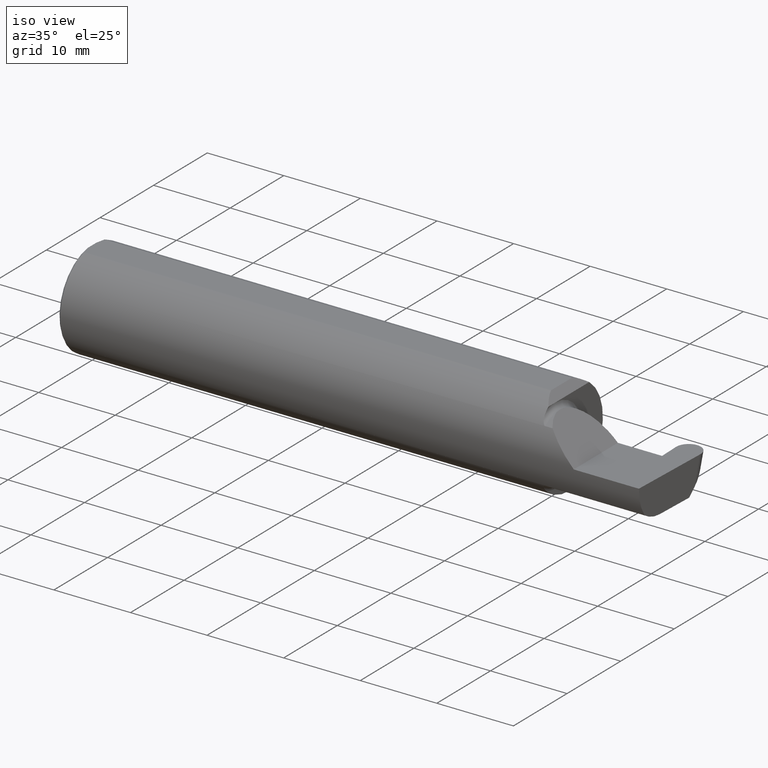
[diagram: clean part render]
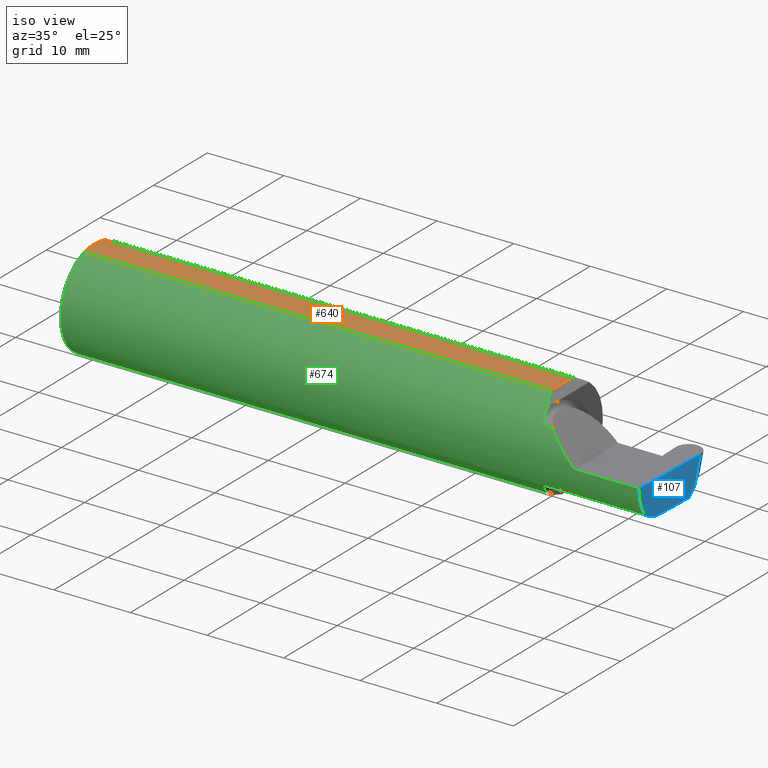
[diagram: same view with three faces highlighted in distinct colors, each labeled with its STEP entity id]
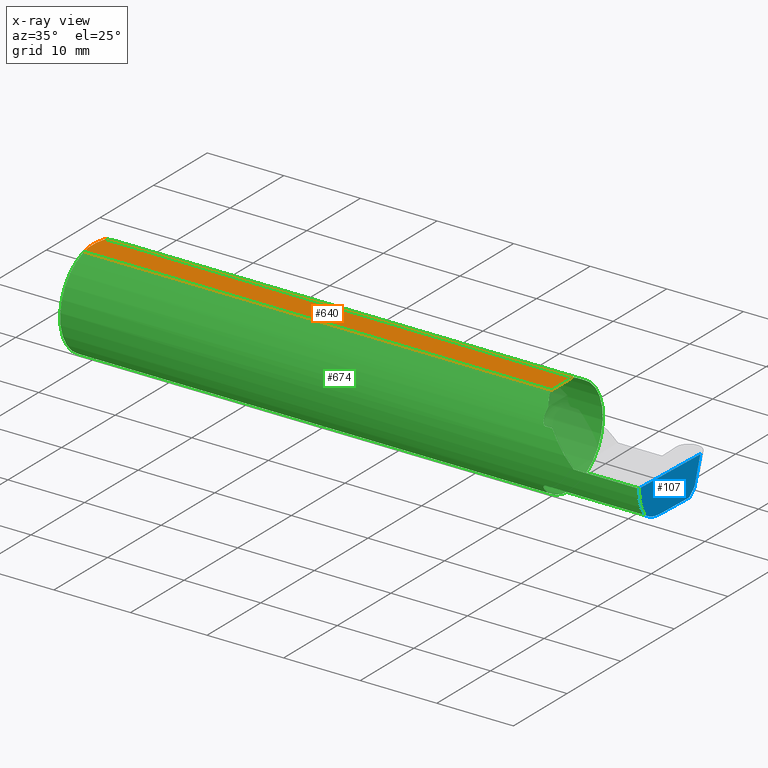
[diagram: x-ray of the same camera — body ghosted, the three highlighted faces saturated]
A machine part, iso view with three faces highlighted in distinct colors.
The next image is the same camera in x-ray (body ghosted, the three faces saturated) — at least one of them is partly hidden behind the body in this view.
Their STEP definitions:

[orange] entity #640 — the highlighted planar face has unit normal (0, 0, 1).
#13 = FACE_OUTER_BOUND ( 'NONE', #463, .T. ) ;
#16 = CARTESIAN_POINT ( 'NONE',  ( 0.000000000000000000, -0.07650098038587520299, 0.2378499999999998671 ) ) ;
#19 = EDGE_CURVE ( 'NONE', #163, #177, #428, .T. ) ;
#32 = VECTOR ( 'NONE', #435, 39.37007874015748143 ) ;
#36 = VERTEX_POINT ( 'NONE', #486 ) ;
#49 = VECTOR ( 'NONE', #578, 39.37007874015748143 ) ;
#95 = ORIENTED_EDGE ( 'NONE', *, *, #214, .F. ) ;
#101 = LINE ( 'NONE', #210, #49 ) ;
#118 = CARTESIAN_POINT ( 'NONE',  ( 2.412149999999998240, -0.2500000000000000555, 0.2378499999999998948 ) ) ;
#124 = ORIENTED_EDGE ( 'NONE', *, *, #19, .T. ) ;
#142 = ORIENTED_EDGE ( 'NONE', *, *, #270, .T. ) ;
#163 = VERTEX_POINT ( 'NONE', #637 ) ;
#177 = VERTEX_POINT ( 'NONE', #574 ) ;
#199 = ORIENTED_EDGE ( 'NONE', *, *, #529, .F. ) ;
#205 = PLANE ( 'NONE',  #273 ) ;
#210 = CARTESIAN_POINT ( 'NONE',  ( 0.000000000000000000, 0.07650098038587520299, 0.2378499999999998671 ) ) ;
#214 = EDGE_CURVE ( 'NONE', #349, #36, #272, .T. ) ;
#224 = VERTEX_POINT ( 'NONE', #753 ) ;
#257 = DIRECTION ( 'NONE',  ( 1.000000000000000000, 0.000000000000000000, 0.000000000000000000 ) ) ;
#263 = CARTESIAN_POINT ( 'NONE',  ( 0.009999999999999927350, 0.07650098038587520299, 0.2378499999999998671 ) ) ;
#264 = ORIENTED_EDGE ( 'NONE', *, *, #275, .F. ) ;
#270 = EDGE_CURVE ( 'NONE', #224, #163, #559, .T. ) ;
#272 = B_SPLINE_CURVE_WITH_KNOTS ( 'NONE', 3,
 ( #439, #755, #686, #263 ),
 .UNSPECIFIED., .F., .F.,
 ( 4, 4 ),
 ( 0.01593449416844765903, 0.01712021724825598876 ),
 .UNSPECIFIED. ) ;
#273 = AXIS2_PLACEMENT_3D ( 'NONE', #388, #555, #632 ) ;
#275 = EDGE_CURVE ( 'NONE', #224, #638, #712, .T. ) ;
#317 = CARTESIAN_POINT ( 'NONE',  ( 0.001983148254845710189, -0.04629825796642594860, 0.2378499999999998671 ) ) ;
#349 = VERTEX_POINT ( 'NONE', #579 ) ;
#360 = VECTOR ( 'NONE', #257, 39.37007874015748143 ) ;
#361 = CARTESIAN_POINT ( 'NONE',  ( 0.000000000000000000, 0.2498499999999998500, 0.2378499999999998671 ) ) ;
#388 = CARTESIAN_POINT ( 'NONE',  ( 3.501298404146671484, 0.2498499999999998500, 0.2378499999999998671 ) ) ;
#428 = LINE ( 'NONE', #118, #32 ) ;
#435 = DIRECTION ( 'NONE',  ( 0.000000000000000000, 1.000000000000000000, 0.000000000000000000 ) ) ;
#439 = CARTESIAN_POINT ( 'NONE',  ( 0.000000000000000000, 0.03090954545120574992, 0.2378499999999998671 ) ) ;
#442 = CARTESIAN_POINT ( 'NONE',  ( 0.000000000000000000, -0.03090954545120560767, 0.2378499999999998671 ) ) ;
#463 = EDGE_LOOP ( 'NONE', ( #142, #124, #582, #95, #199, #264 ) ) ;
#486 = CARTESIAN_POINT ( 'NONE',  ( 0.009999999999999927350, 0.07650098038587520299, 0.2378499999999998671 ) ) ;
#504 = CARTESIAN_POINT ( 'NONE',  ( 0.000000000000000000, -0.03090954545120560767, 0.2378499999999998671 ) ) ;
#529 = EDGE_CURVE ( 'NONE', #638, #349, #666, .T. ) ;
#555 = DIRECTION ( 'NONE',  ( 0.000000000000000000, 0.000000000000000000, 1.000000000000000000 ) ) ;
#559 = LINE ( 'NONE', #16, #360 ) ;
#574 = CARTESIAN_POINT ( 'NONE',  ( 2.412149999999998240, 0.07650098038587530014, 0.2378499999999998948 ) ) ;
#578 = DIRECTION ( 'NONE',  ( -1.000000000000000000, -0.000000000000000000, -0.000000000000000000 ) ) ;
#579 = CARTESIAN_POINT ( 'NONE',  ( 0.000000000000000000, 0.03090954545120574992, 0.2378499999999998671 ) ) ;
#582 = ORIENTED_EDGE ( 'NONE', *, *, #687, .T. ) ;
#605 = DIRECTION ( 'NONE',  ( -0.000000000000000000, 1.000000000000000000, -0.000000000000000000 ) ) ;
#632 = DIRECTION ( 'NONE',  ( 1.000000000000000000, 0.000000000000000000, -0.000000000000000000 ) ) ;
#637 = CARTESIAN_POINT ( 'NONE',  ( 2.412149999999998240, -0.07650098038587530014, 0.2378499999999998948 ) ) ;
#638 = VERTEX_POINT ( 'NONE', #504 ) ;
#640 = ADVANCED_FACE ( 'NONE', ( #13 ), #205, .T. ) ;
#666 = LINE ( 'NONE', #361, #760 ) ;
#686 = CARTESIAN_POINT ( 'NONE',  ( 0.005466242398876407227, 0.06169385855649833772, 0.2378499999999998671 ) ) ;
#687 = EDGE_CURVE ( 'NONE', #177, #36, #101, .T. ) ;
#688 = CARTESIAN_POINT ( 'NONE',  ( 0.009999999999999927350, -0.07650098038587520299, 0.2378499999999998671 ) ) ;
#712 = B_SPLINE_CURVE_WITH_KNOTS ( 'NONE', 3,
 ( #688, #749, #317, #442 ),
 .UNSPECIFIED., .F., .F.,
 ( 4, 4 ),
 ( 0.01317593029100226111, 0.01435802289191457325 ),
 .UNSPECIFIED. ) ;
#749 = CARTESIAN_POINT ( 'NONE',  ( 0.005459900170181729989, -0.06167314502012864741, 0.2378499999999998671 ) ) ;
#753 = CARTESIAN_POINT ( 'NONE',  ( 0.009999999999999927350, -0.07650098038587520299, 0.2378499999999998671 ) ) ;
#755 = CARTESIAN_POINT ( 'NONE',  ( 0.002005502345409073024, 0.04647171987093980799, 0.2378499999999998671 ) ) ;
#760 = VECTOR ( 'NONE', #605, 39.37007874015748143 ) ;

[blue] entity #107 — the highlighted planar face has unit normal (-0.9992, 0.0349, 0.0175).
#11 = FACE_OUTER_BOUND ( 'NONE', #348, .T. ) ;
#20 = CARTESIAN_POINT ( 'NONE',  ( 2.984591634083985756, -0.1771157075472505615, -0.1623092683844333806 ) ) ;
#39 = LINE ( 'NONE', #54, #592 ) ;
#44 =( BOUNDED_CURVE ( )  B_SPLINE_CURVE ( 3, ( #663, #485, #117, #61 ),
 .UNSPECIFIED., .F., .F. ) 
 B_SPLINE_CURVE_WITH_KNOTS ( ( 4, 4 ),
 ( 6.160376845738953833, 6.746954780470613144 ),
 .UNSPECIFIED. ) 
 CURVE ( )  GEOMETRIC_REPRESENTATION_ITEM ( )  RATIONAL_B_SPLINE_CURVE ( ( 1.000000000000000000, 0.9715321379117536349, 0.9715321379117536349, 1.000000000000000000 ) ) 
 REPRESENTATION_ITEM ( '' )  );
#46 = DIRECTION ( 'NONE',  ( 0.02590004391968258463, 0.2587322210431824421, 0.9656017944882975268 ) ) ;
#53 = LINE ( 'NONE', #709, #320 ) ;
#54 = CARTESIAN_POINT ( 'NONE',  ( 2.996896011933845472, 0.1563248983306043671, -0.1244994388175648253 ) ) ;
#61 = CARTESIAN_POINT ( 'NONE',  ( 2.984886542352623628, -0.2498499999999999888, 0.000000000000000000 ) ) ;
#79 = EDGE_CURVE ( 'NONE', #469, #535, #793, .T. ) ;
#83 = ORIENTED_EDGE ( 'NONE', *, *, #635, .T. ) ;
#107 = ADVANCED_FACE ( 'NONE', ( #11 ), #303, .F. ) ;
#117 = CARTESIAN_POINT ( 'NONE',  ( 2.984020840019027343, -0.2498500000000000443, -0.04956584089959705647 ) ) ;
#150 = VERTEX_POINT ( 'NONE', #668 ) ;
#164 = ORIENTED_EDGE ( 'NONE', *, *, #498, .F. ) ;
#188 = DIRECTION ( 'NONE',  ( -0.03489949670249505725, -0.9993908270190959842, 0.000000000000000000 ) ) ;
#196 = VERTEX_POINT ( 'NONE', #513 ) ;
#197 = EDGE_CURVE ( 'NONE', #515, #150, #445, .T. ) ;
#202 = ORIENTED_EDGE ( 'NONE', *, *, #197, .T. ) ;
#238 = DIRECTION ( 'NONE',  ( -0.9992386149554828290, 0.03489418134010775774, 0.01745240643728358798 ) ) ;
#258 = VECTOR ( 'NONE', #550, 39.37007874015748854 ) ;
#286 = ORIENTED_EDGE ( 'NONE', *, *, #751, .T. ) ;
#303 = PLANE ( 'NONE',  #436 ) ;
#307 = CARTESIAN_POINT ( 'NONE',  ( 2.987538890366190802, -0.08637003105099090583, -0.1750000000000000722 ) ) ;
#318 = VECTOR ( 'NONE', #691, 39.37007874015748143 ) ;
#320 = VECTOR ( 'NONE', #46, 39.37007874015748854 ) ;
#337 = ORIENTED_EDGE ( 'NONE', *, *, #391, .F. ) ;
#346 = ORIENTED_EDGE ( 'NONE', *, *, #79, .F. ) ;
#348 = EDGE_LOOP ( 'NONE', ( #337, #286, #202, #164, #83, #346 ) ) ;
#369 = CARTESIAN_POINT ( 'NONE',  ( 2.987033238708274752, -0.1008499999999993291, -0.1750000000000000722 ) ) ;
#391 = EDGE_CURVE ( 'NONE', #196, #469, #39, .T. ) ;
#414 = DIRECTION ( 'NONE',  ( -0.03701744261649875939, -0.7066221440565400025, -0.7066221440565478851 ) ) ;
#430 = CARTESIAN_POINT ( 'NONE',  ( 2.994250465595685196, 0.1058243371481696615, -0.1750000000000001277 ) ) ;
#436 = AXIS2_PLACEMENT_3D ( 'NONE', #743, #238, #188 ) ;
#445 = LINE ( 'NONE', #564, #318 ) ;
#457 = CARTESIAN_POINT ( 'NONE',  ( 2.983929579294953616, -0.2080850024789288599, -0.1382955322609669135 ) ) ;
#469 = VERTEX_POINT ( 'NONE', #430 ) ;
#485 = CARTESIAN_POINT ( 'NONE',  ( 2.983692505346974944, -0.2355204011147991883, -0.09701513151466779894 ) ) ;
#498 = EDGE_CURVE ( 'NONE', #771, #150, #44, .T. ) ;
#507 =( BOUNDED_CURVE ( )  B_SPLINE_CURVE ( 3, ( #562, #20, #748, #626 ),
 .UNSPECIFIED., .F., .F. ) 
 B_SPLINE_CURVE_WITH_KNOTS ( ( 4, 4 ),
 ( 0.4474640105399692036, 1.107026853503877195 ),
 .UNSPECIFIED. ) 
 CURVE ( )  GEOMETRIC_REPRESENTATION_ITEM ( )  RATIONAL_B_SPLINE_CURVE ( ( 1.000000000000000000, 0.9640754331822828371, 0.9640754331822828371, 1.000000000000000000 ) ) 
 REPRESENTATION_ITEM ( '' )  );
#513 = CARTESIAN_POINT ( 'NONE',  ( 2.996204691241262985, 0.1431283489340402226, -0.1376959882141291225 ) ) ;
#515 = VERTEX_POINT ( 'NONE', #600 ) ;
#535 = VERTEX_POINT ( 'NONE', #369 ) ;
#550 = DIRECTION ( 'NONE',  ( -0.03489949670249505725, -0.9993908270190959842, 1.222058880457094148E-16 ) ) ;
#562 = CARTESIAN_POINT ( 'NONE',  ( 2.983929579294953616, -0.2080850024789288599, -0.1382955322609669135 ) ) ;
#564 = CARTESIAN_POINT ( 'NONE',  ( 2.999961557721757099, 0.1818419583544338969, 0.000000000000000000 ) ) ;
#592 = VECTOR ( 'NONE', #414, 39.37007874015748143 ) ;
#600 = CARTESIAN_POINT ( 'NONE',  ( 2.999898068948996244, 0.1800238777770215015, 0.000000000000000000 ) ) ;
#626 = CARTESIAN_POINT ( 'NONE',  ( 2.987033238708274752, -0.1008499999999993291, -0.1750000000000000722 ) ) ;
#635 = EDGE_CURVE ( 'NONE', #771, #535, #507, .T. ) ;
#663 = CARTESIAN_POINT ( 'NONE',  ( 2.983929579294953616, -0.2080850024789288599, -0.1382955322609669135 ) ) ;
#668 = CARTESIAN_POINT ( 'NONE',  ( 2.984886542352623628, -0.2498499999999999888, 0.000000000000000000 ) ) ;
#691 = DIRECTION ( 'NONE',  ( -0.03489949670249506419, -0.9993908270190959842, 0.000000000000000000 ) ) ;
#709 = CARTESIAN_POINT ( 'NONE',  ( 2.999910294815772982, 0.1801460098349874639, 0.0004558030455618174615 ) ) ;
#743 = CARTESIAN_POINT ( 'NONE',  ( 2.999961557721757099, 0.1818419583544338969, 0.000000000000000000 ) ) ;
#748 = CARTESIAN_POINT ( 'NONE',  ( 2.985664738015655129, -0.1400387324517225474, -0.1750000000000002109 ) ) ;
#751 = EDGE_CURVE ( 'NONE', #196, #515, #53, .T. ) ;
#771 = VERTEX_POINT ( 'NONE', #457 ) ;
#793 = LINE ( 'NONE', #307, #258 ) ;

[green] entity #674 — the highlighted cylindrical surface (partial cylindrical patch) has radius 6.3462 mm, axis along (-1, -0, -0).
#3 = DIRECTION ( 'NONE',  ( -1.000000000000000000, -0.000000000000000000, -0.000000000000000000 ) ) ;
#4 = CARTESIAN_POINT ( 'NONE',  ( 2.450000000000000178, -0.1616050818046600723, 0.1905487340154983222 ) ) ;
#6 = CIRCLE ( 'NONE', #734, 0.2498499999999999888 ) ;
#8 = B_SPLINE_CURVE_WITH_KNOTS ( 'NONE', 3,
 ( #4, #796, #311, #618, #494, #77, #71, #63, #298, #481, #314, #490, #673, #362 ),
 .UNSPECIFIED., .F., .F.,
 ( 4, 2, 2, 2, 2, 2, 4 ),
 ( 0.0003834465838148106917, 0.0008781406165086602222, 0.001372834649202509753, 0.001867528681896359283, 0.002114875698243287843, 0.002238549206416752015, 0.002362222714590216620 ),
 .UNSPECIFIED. ) ;
#15 = CARTESIAN_POINT ( 'NONE',  ( 2.674394314999999800, -0.2080850024789289432, 0.1382955322609669135 ) ) ;
#16 = CARTESIAN_POINT ( 'NONE',  ( 0.000000000000000000, -0.07650098038587520299, 0.2378499999999998671 ) ) ;
#22 = CARTESIAN_POINT ( 'NONE',  ( 2.511704467739031887, -0.2080850024789288322, 0.1382955322609670523 ) ) ;
#24 = CARTESIAN_POINT ( 'NONE',  ( 2.473318040126430084, -0.2080850024789288322, -0.1382955322609669968 ) ) ;
#27 = CARTESIAN_POINT ( 'NONE',  ( 2.462579853086619419, -0.2024300470081732695, -0.1464774911482688291 ) ) ;
#36 = VERTEX_POINT ( 'NONE', #486 ) ;
#38 = CARTESIAN_POINT ( 'NONE',  ( 2.475000000000000089, -0.2080850024789288044, 0.1382955322609670523 ) ) ;
#41 = VERTEX_POINT ( 'NONE', #729 ) ;
#44 =( BOUNDED_CURVE ( )  B_SPLINE_CURVE ( 3, ( #663, #485, #117, #61 ),
 .UNSPECIFIED., .F., .F. ) 
 B_SPLINE_CURVE_WITH_KNOTS ( ( 4, 4 ),
 ( 6.160376845738953833, 6.746954780470613144 ),
 .UNSPECIFIED. ) 
 CURVE ( )  GEOMETRIC_REPRESENTATION_ITEM ( )  RATIONAL_B_SPLINE_CURVE ( ( 1.000000000000000000, 0.9715321379117536349, 0.9715321379117536349, 1.000000000000000000 ) ) 
 REPRESENTATION_ITEM ( '' )  );
#49 = VECTOR ( 'NONE', #578, 39.37007874015748143 ) ;
#58 = EDGE_CURVE ( 'NONE', #41, #689, #561, .T. ) ;
#61 = CARTESIAN_POINT ( 'NONE',  ( 2.984886542352623628, -0.2498499999999999888, 0.000000000000000000 ) ) ;
#63 = CARTESIAN_POINT ( 'NONE',  ( 2.462616400345754908, -0.2024684335577099925, 0.1464246884265640869 ) ) ;
#67 = DIRECTION ( 'NONE',  ( 0.000000000000000000, 1.000000000000000000, 0.000000000000000000 ) ) ;
#68 = EDGE_CURVE ( 'NONE', #730, #703, #8, .T. ) ;
#71 = CARTESIAN_POINT ( 'NONE',  ( 2.458182335268384477, -0.1972192205116128361, 0.1535061413537212593 ) ) ;
#75 = CIRCLE ( 'NONE', #514, 0.2498499999999999888 ) ;
#77 = CARTESIAN_POINT ( 'NONE',  ( 2.456159563508733878, -0.1933019864360846773, 0.1584298865564834069 ) ) ;
#78 = EDGE_CURVE ( 'NONE', #771, #591, #123, .T. ) ;
#81 = CARTESIAN_POINT ( 'NONE',  ( 0.000000000000000000, 0.000000000000000000, 0.000000000000000000 ) ) ;
#85 = CARTESIAN_POINT ( 'NONE',  ( 2.475000000000000089, -0.2080850024789288322, -0.1382955322609670523 ) ) ;
#89 = FACE_OUTER_BOUND ( 'NONE', #462, .T. ) ;
#92 = CARTESIAN_POINT ( 'NONE',  ( 2.450000000000000178, 0.1497498664440163330, 0.1999999999999982903 ) ) ;
#99 = ORIENTED_EDGE ( 'NONE', *, *, #357, .T. ) ;
#101 = LINE ( 'NONE', #210, #49 ) ;
#104 = CARTESIAN_POINT ( 'NONE',  ( 2.433375685911487007, 0.1275470899297183047, 0.2166243140885106555 ) ) ;
#108 = VERTEX_POINT ( 'NONE', #130 ) ;
#117 = CARTESIAN_POINT ( 'NONE',  ( 2.984020840019027343, -0.2498500000000000443, -0.04956584089959705647 ) ) ;
#123 = LINE ( 'NONE', #128, #295 ) ;
#128 = CARTESIAN_POINT ( 'NONE',  ( 2.674394314999999800, -0.2080850024789289432, -0.1382955322609669135 ) ) ;
#130 = CARTESIAN_POINT ( 'NONE',  ( 0.009999999999999927350, 0.000000000000000000, -0.2498499999999999888 ) ) ;
#135 = DIRECTION ( 'NONE',  ( 0.000000000000000000, 0.000000000000000000, 1.000000000000000000 ) ) ;
#145 = VERTEX_POINT ( 'NONE', #557 ) ;
#150 = VERTEX_POINT ( 'NONE', #668 ) ;
#163 = VERTEX_POINT ( 'NONE', #637 ) ;
#168 = VECTOR ( 'NONE', #437, 39.37007874015748143 ) ;
#177 = VERTEX_POINT ( 'NONE', #574 ) ;
#186 = ORIENTED_EDGE ( 'NONE', *, *, #78, .F. ) ;
#191 = CARTESIAN_POINT ( 'NONE',  ( 2.600434159100402987, -0.2498499999999999610, 0.04956584089959713973 ) ) ;
#207 = CARTESIAN_POINT ( 'NONE',  ( 2.552984868485331571, -0.2355204011147991605, 0.09701513151466779894 ) ) ;
#210 = CARTESIAN_POINT ( 'NONE',  ( 0.000000000000000000, 0.07650098038587520299, 0.2378499999999998671 ) ) ;
#213 = EDGE_CURVE ( 'NONE', #390, #145, #420, .T. ) ;
#215 = CARTESIAN_POINT ( 'NONE',  ( 2.450000000000000178, -0.1497498664440164995, 0.1999999999999982070 ) ) ;
#219 = CIRCLE ( 'NONE', #246, 0.2498499999999999888 ) ;
#220 = CARTESIAN_POINT ( 'NONE',  ( 2.456147634408387681, -0.1932733126899457698, -0.1584637047788200748 ) ) ;
#224 = VERTEX_POINT ( 'NONE', #753 ) ;
#246 = AXIS2_PLACEMENT_3D ( 'NONE', #347, #400, #458 ) ;
#254 =( BOUNDED_CURVE ( )  B_SPLINE_CURVE ( 3, ( #528, #780, #104, #399 ),
 .UNSPECIFIED., .F., .F. ) 
 B_SPLINE_CURVE_WITH_KNOTS ( ( 4, 4 ),
 ( 0.3111857320071445554, 0.6427002007837625541 ),
 .UNSPECIFIED. ) 
 CURVE ( )  GEOMETRIC_REPRESENTATION_ITEM ( )  RATIONAL_B_SPLINE_CURVE ( ( 1.000000000000000000, 0.9908624633578575480, 0.9908624633578575480, 1.000000000000000000 ) ) 
 REPRESENTATION_ITEM ( '' )  );
#257 = DIRECTION ( 'NONE',  ( 1.000000000000000000, 0.000000000000000000, 0.000000000000000000 ) ) ;
#260 = ORIENTED_EDGE ( 'NONE', *, *, #270, .F. ) ;
#270 = EDGE_CURVE ( 'NONE', #224, #163, #559, .T. ) ;
#280 = ORIENTED_EDGE ( 'NONE', *, *, #68, .F. ) ;
#282 = CARTESIAN_POINT ( 'NONE',  ( 2.433375685911487452, -0.1275470899297185268, 0.2166243140885105445 ) ) ;
#284 = ORIENTED_EDGE ( 'NONE', *, *, #213, .T. ) ;
#295 = VECTOR ( 'NONE', #373, 39.37007874015748143 ) ;
#298 = CARTESIAN_POINT ( 'NONE',  ( 2.464343523383979218, -0.2041337200786081107, 0.1440846171672515441 ) ) ;
#306 = LINE ( 'NONE', #549, #488 ) ;
#309 = CARTESIAN_POINT ( 'NONE',  ( 2.450000000000000178, -0.1497498664440164995, 0.1999999999999982070 ) ) ;
#311 = CARTESIAN_POINT ( 'NONE',  ( 2.450367168219774072, -0.1713400252854599681, 0.1819601557798508629 ) ) ;
#313 = DIRECTION ( 'NONE',  ( -1.000000000000000000, -0.000000000000000000, -0.000000000000000000 ) ) ;
#314 = CARTESIAN_POINT ( 'NONE',  ( 2.468876997637615922, -0.2068363917296598964, 0.1401586554522233075 ) ) ;
#316 = ORIENTED_EDGE ( 'NONE', *, *, #498, .T. ) ;
#321 = LINE ( 'NONE', #15, #168 ) ;
#324 = CARTESIAN_POINT ( 'NONE',  ( 2.467611663768900510, -0.2061921161193829011, -0.1411075319999379740 ) ) ;
#329 =( BOUNDED_CURVE ( )  B_SPLINE_CURVE ( 3, ( #215, #282, #769, #589 ),
 .UNSPECIFIED., .F., .F. ) 
 B_SPLINE_CURVE_WITH_KNOTS ( ( 4, 4 ),
 ( 5.640485106395822790, 5.971999575172441510 ),
 .UNSPECIFIED. ) 
 CURVE ( )  GEOMETRIC_REPRESENTATION_ITEM ( )  RATIONAL_B_SPLINE_CURVE ( ( 1.000000000000000000, 0.9908624633578575480, 0.9908624633578575480, 1.000000000000000000 ) ) 
 REPRESENTATION_ITEM ( '' )  );
#336 = EDGE_CURVE ( 'NONE', #108, #36, #6, .T. ) ;
#340 = CARTESIAN_POINT ( 'NONE',  ( 2.451385488563269988, -0.1808287530430323642, -0.1728790649396288737 ) ) ;
#341 = CARTESIAN_POINT ( 'NONE',  ( 0.009999999999999927350, 0.000000000000000000, 0.000000000000000000 ) ) ;
#345 = CARTESIAN_POINT ( 'NONE',  ( 2.650000000000000355, -0.2498499999999999610, 4.286263797015729199E-17 ) ) ;
#347 = CARTESIAN_POINT ( 'NONE',  ( 0.009999999999999927350, 0.000000000000000000, 0.000000000000000000 ) ) ;
#357 = EDGE_CURVE ( 'NONE', #224, #108, #219, .T. ) ;
#358 = DIRECTION ( 'NONE',  ( 1.000000000000000000, 2.820234929918045414E-16, 0.000000000000000000 ) ) ;
#360 = VECTOR ( 'NONE', #257, 39.37007874015748143 ) ;
#362 = CARTESIAN_POINT ( 'NONE',  ( 2.475000000000000089, -0.2080850024789288044, 0.1382955322609670523 ) ) ;
#373 = DIRECTION ( 'NONE',  ( -1.000000000000000000, -2.820234929918045414E-16, -0.000000000000000000 ) ) ;
#375 = CARTESIAN_POINT ( 'NONE',  ( 2.458176740666625282, -0.1972027065478069718, -0.1535263573771916967 ) ) ;
#390 = VERTEX_POINT ( 'NONE', #345 ) ;
#399 = CARTESIAN_POINT ( 'NONE',  ( 2.450000000000000178, 0.1497498664440163330, 0.1999999999999982903 ) ) ;
#400 = DIRECTION ( 'NONE',  ( 1.000000000000000000, 0.000000000000000000, 0.000000000000000000 ) ) ;
#412 = CARTESIAN_POINT ( 'NONE',  ( 2.450000000000000622, -0.1716188362992550620, -0.1820560320165483525 ) ) ;
#420 =( BOUNDED_CURVE ( )  B_SPLINE_CURVE ( 3, ( #623, #191, #207, #22 ),
 .UNSPECIFIED., .F., .F. ) 
 B_SPLINE_CURVE_WITH_KNOTS ( ( 4, 4 ),
 ( 4.712388980384689674, 5.298966915116348986 ),
 .UNSPECIFIED. ) 
 CURVE ( )  GEOMETRIC_REPRESENTATION_ITEM ( )  RATIONAL_B_SPLINE_CURVE ( ( 1.000000000000000000, 0.9715321379117536349, 0.9715321379117536349, 1.000000000000000000 ) ) 
 REPRESENTATION_ITEM ( '' )  );
#429 = ORIENTED_EDGE ( 'NONE', *, *, #756, .T. ) ;
#437 = DIRECTION ( 'NONE',  ( 1.000000000000000000, 2.820234929918045414E-16, 0.000000000000000000 ) ) ;
#441 = DIRECTION ( 'NONE',  ( 1.000000000000000000, 2.820234929918045414E-16, 0.000000000000000000 ) ) ;
#444 = CARTESIAN_POINT ( 'NONE',  ( 2.471700027347578654, -0.2077785947292765945, -0.1387580622202828906 ) ) ;
#452 = CYLINDRICAL_SURFACE ( 'NONE', #761, 0.2498499999999999888 ) ;
#457 = CARTESIAN_POINT ( 'NONE',  ( 2.983929579294953616, -0.2080850024789288599, -0.1382955322609669135 ) ) ;
#458 = DIRECTION ( 'NONE',  ( 0.000000000000000000, 0.000000000000000000, -1.000000000000000000 ) ) ;
#461 = DIRECTION ( 'NONE',  ( 0.000000000000000000, 0.000000000000000000, -1.000000000000000000 ) ) ;
#462 = EDGE_LOOP ( 'NONE', ( #186, #316, #787, #284, #758, #280, #754, #429, #260, #99, #750, #572, #696, #531, #634 ) ) ;
#464 = CARTESIAN_POINT ( 'NONE',  ( 2.450000000000000178, -0.1616050818046600723, 0.1905487340154983222 ) ) ;
#481 = CARTESIAN_POINT ( 'NONE',  ( 2.467647060162627692, -0.2062109266231179627, 0.1410799729252294465 ) ) ;
#485 = CARTESIAN_POINT ( 'NONE',  ( 2.983692505346974944, -0.2355204011147991883, -0.09701513151466779894 ) ) ;
#486 = CARTESIAN_POINT ( 'NONE',  ( 0.009999999999999927350, 0.07650098038587520299, 0.2378499999999998671 ) ) ;
#488 = VECTOR ( 'NONE', #3, 39.37007874015748143 ) ;
#490 = CARTESIAN_POINT ( 'NONE',  ( 2.471718393013770054, -0.2077830475237239516, 0.1387513848711940667 ) ) ;
#494 = CARTESIAN_POINT ( 'NONE',  ( 2.452968662030529323, -0.1849684355203375652, 0.1680843977756270591 ) ) ;
#497 = CARTESIAN_POINT ( 'NONE',  ( 2.450000000000000178, 0.000000000000000000, 0.000000000000000000 ) ) ;
#498 = EDGE_CURVE ( 'NONE', #771, #150, #44, .T. ) ;
#500 = DIRECTION ( 'NONE',  ( 0.000000000000000000, 1.000000000000000000, 0.000000000000000000 ) ) ;
#514 = AXIS2_PLACEMENT_3D ( 'NONE', #622, #441, #500 ) ;
#528 = CARTESIAN_POINT ( 'NONE',  ( 2.412149999999998240, 0.07650098038587530014, 0.2378499999999998948 ) ) ;
#531 = ORIENTED_EDGE ( 'NONE', *, *, #58, .F. ) ;
#536 = AXIS2_PLACEMENT_3D ( 'NONE', #497, #358, #67 ) ;
#549 = CARTESIAN_POINT ( 'NONE',  ( 4.499279347985562423E-32, -0.2498499999999999610, 3.673940397442054938E-16 ) ) ;
#557 = CARTESIAN_POINT ( 'NONE',  ( 2.511704467739031887, -0.2080850024789288322, 0.1382955322609670523 ) ) ;
#559 = LINE ( 'NONE', #16, #360 ) ;
#560 = VERTEX_POINT ( 'NONE', #309 ) ;
#561 = CIRCLE ( 'NONE', #536, 0.2498499999999999888 ) ;
#566 = EDGE_CURVE ( 'NONE', #150, #390, #306, .T. ) ;
#570 = CARTESIAN_POINT ( 'NONE',  ( 2.464302603425052141, -0.2041009206016211608, -0.1441313430770042037 ) ) ;
#572 = ORIENTED_EDGE ( 'NONE', *, *, #687, .F. ) ;
#574 = CARTESIAN_POINT ( 'NONE',  ( 2.412149999999998240, 0.07650098038587530014, 0.2378499999999998948 ) ) ;
#578 = DIRECTION ( 'NONE',  ( -1.000000000000000000, -0.000000000000000000, -0.000000000000000000 ) ) ;
#583 = CARTESIAN_POINT ( 'NONE',  ( 2.450000000000000178, -0.1616050818046600723, -0.1905487340154983222 ) ) ;
#584 = DIRECTION ( 'NONE',  ( 1.000000000000000000, 0.000000000000000000, 0.000000000000000000 ) ) ;
#585 = B_SPLINE_CURVE_WITH_KNOTS ( 'NONE', 3,
 ( #752, #24, #444, #690, #324, #570, #27, #375, #220, #340, #412, #583 ),
 .UNSPECIFIED., .F., .F.,
 ( 4, 2, 2, 2, 2, 4 ),
 ( 1.964491429111597470E-07, 0.0001260981470478304801, 0.0002519998449527497872, 0.0005038032407626170245, 0.001007410032382351391, 0.002014623615621820556 ),
 .UNSPECIFIED. ) ;
#589 = CARTESIAN_POINT ( 'NONE',  ( 2.412149999999998240, -0.07650098038587530014, 0.2378499999999998948 ) ) ;
#591 = VERTEX_POINT ( 'NONE', #85 ) ;
#615 = EDGE_CURVE ( 'NONE', #560, #730, #75, .T. ) ;
#618 = CARTESIAN_POINT ( 'NONE',  ( 2.451849548162864156, -0.1805300287242670720, 0.1728462070311783116 ) ) ;
#622 = CARTESIAN_POINT ( 'NONE',  ( 2.450000000000000178, 0.000000000000000000, 0.000000000000000000 ) ) ;
#623 = CARTESIAN_POINT ( 'NONE',  ( 2.650000000000000355, -0.2498499999999999610, 4.286263797015729199E-17 ) ) ;
#624 = EDGE_CURVE ( 'NONE', #703, #145, #321, .T. ) ;
#634 = ORIENTED_EDGE ( 'NONE', *, *, #677, .F. ) ;
#637 = CARTESIAN_POINT ( 'NONE',  ( 2.412149999999998240, -0.07650098038587530014, 0.2378499999999998948 ) ) ;
#663 = CARTESIAN_POINT ( 'NONE',  ( 2.983929579294953616, -0.2080850024789288599, -0.1382955322609669135 ) ) ;
#668 = CARTESIAN_POINT ( 'NONE',  ( 2.984886542352623628, -0.2498499999999999888, 0.000000000000000000 ) ) ;
#673 = CARTESIAN_POINT ( 'NONE',  ( 2.473329956043142985, -0.2080850024798588660, 0.1382955322595678105 ) ) ;
#674 = ADVANCED_FACE ( 'NONE', ( #89 ), #452, .T. ) ;
#677 = EDGE_CURVE ( 'NONE', #591, #41, #585, .T. ) ;
#687 = EDGE_CURVE ( 'NONE', #177, #36, #101, .T. ) ;
#689 = VERTEX_POINT ( 'NONE', #92 ) ;
#690 = CARTESIAN_POINT ( 'NONE',  ( 2.468863362722769406, -0.2068301641248768419, -0.1401678546132364422 ) ) ;
#696 = ORIENTED_EDGE ( 'NONE', *, *, #782, .T. ) ;
#703 = VERTEX_POINT ( 'NONE', #38 ) ;
#729 = CARTESIAN_POINT ( 'NONE',  ( 2.450000000000000178, -0.1616050818046600723, -0.1905487340154983222 ) ) ;
#730 = VERTEX_POINT ( 'NONE', #464 ) ;
#734 = AXIS2_PLACEMENT_3D ( 'NONE', #341, #584, #461 ) ;
#750 = ORIENTED_EDGE ( 'NONE', *, *, #336, .T. ) ;
#752 = CARTESIAN_POINT ( 'NONE',  ( 2.475000000000000089, -0.2080850024789288322, -0.1382955322609670523 ) ) ;
#753 = CARTESIAN_POINT ( 'NONE',  ( 0.009999999999999927350, -0.07650098038587520299, 0.2378499999999998671 ) ) ;
#754 = ORIENTED_EDGE ( 'NONE', *, *, #615, .F. ) ;
#756 = EDGE_CURVE ( 'NONE', #560, #163, #329, .T. ) ;
#758 = ORIENTED_EDGE ( 'NONE', *, *, #624, .F. ) ;
#761 = AXIS2_PLACEMENT_3D ( 'NONE', #81, #313, #135 ) ;
#769 = CARTESIAN_POINT ( 'NONE',  ( 2.420642670853159650, -0.1029056323555046087, 0.2293573291468382624 ) ) ;
#771 = VERTEX_POINT ( 'NONE', #457 ) ;
#780 = CARTESIAN_POINT ( 'NONE',  ( 2.420642670853159650, 0.1029056323555044561, 0.2293573291468383457 ) ) ;
#782 = EDGE_CURVE ( 'NONE', #177, #689, #254, .T. ) ;
#787 = ORIENTED_EDGE ( 'NONE', *, *, #566, .T. ) ;
#796 = CARTESIAN_POINT ( 'NONE',  ( 2.449999999999999734, -0.1665641037263005941, 0.1863429692936364734 ) ) ;